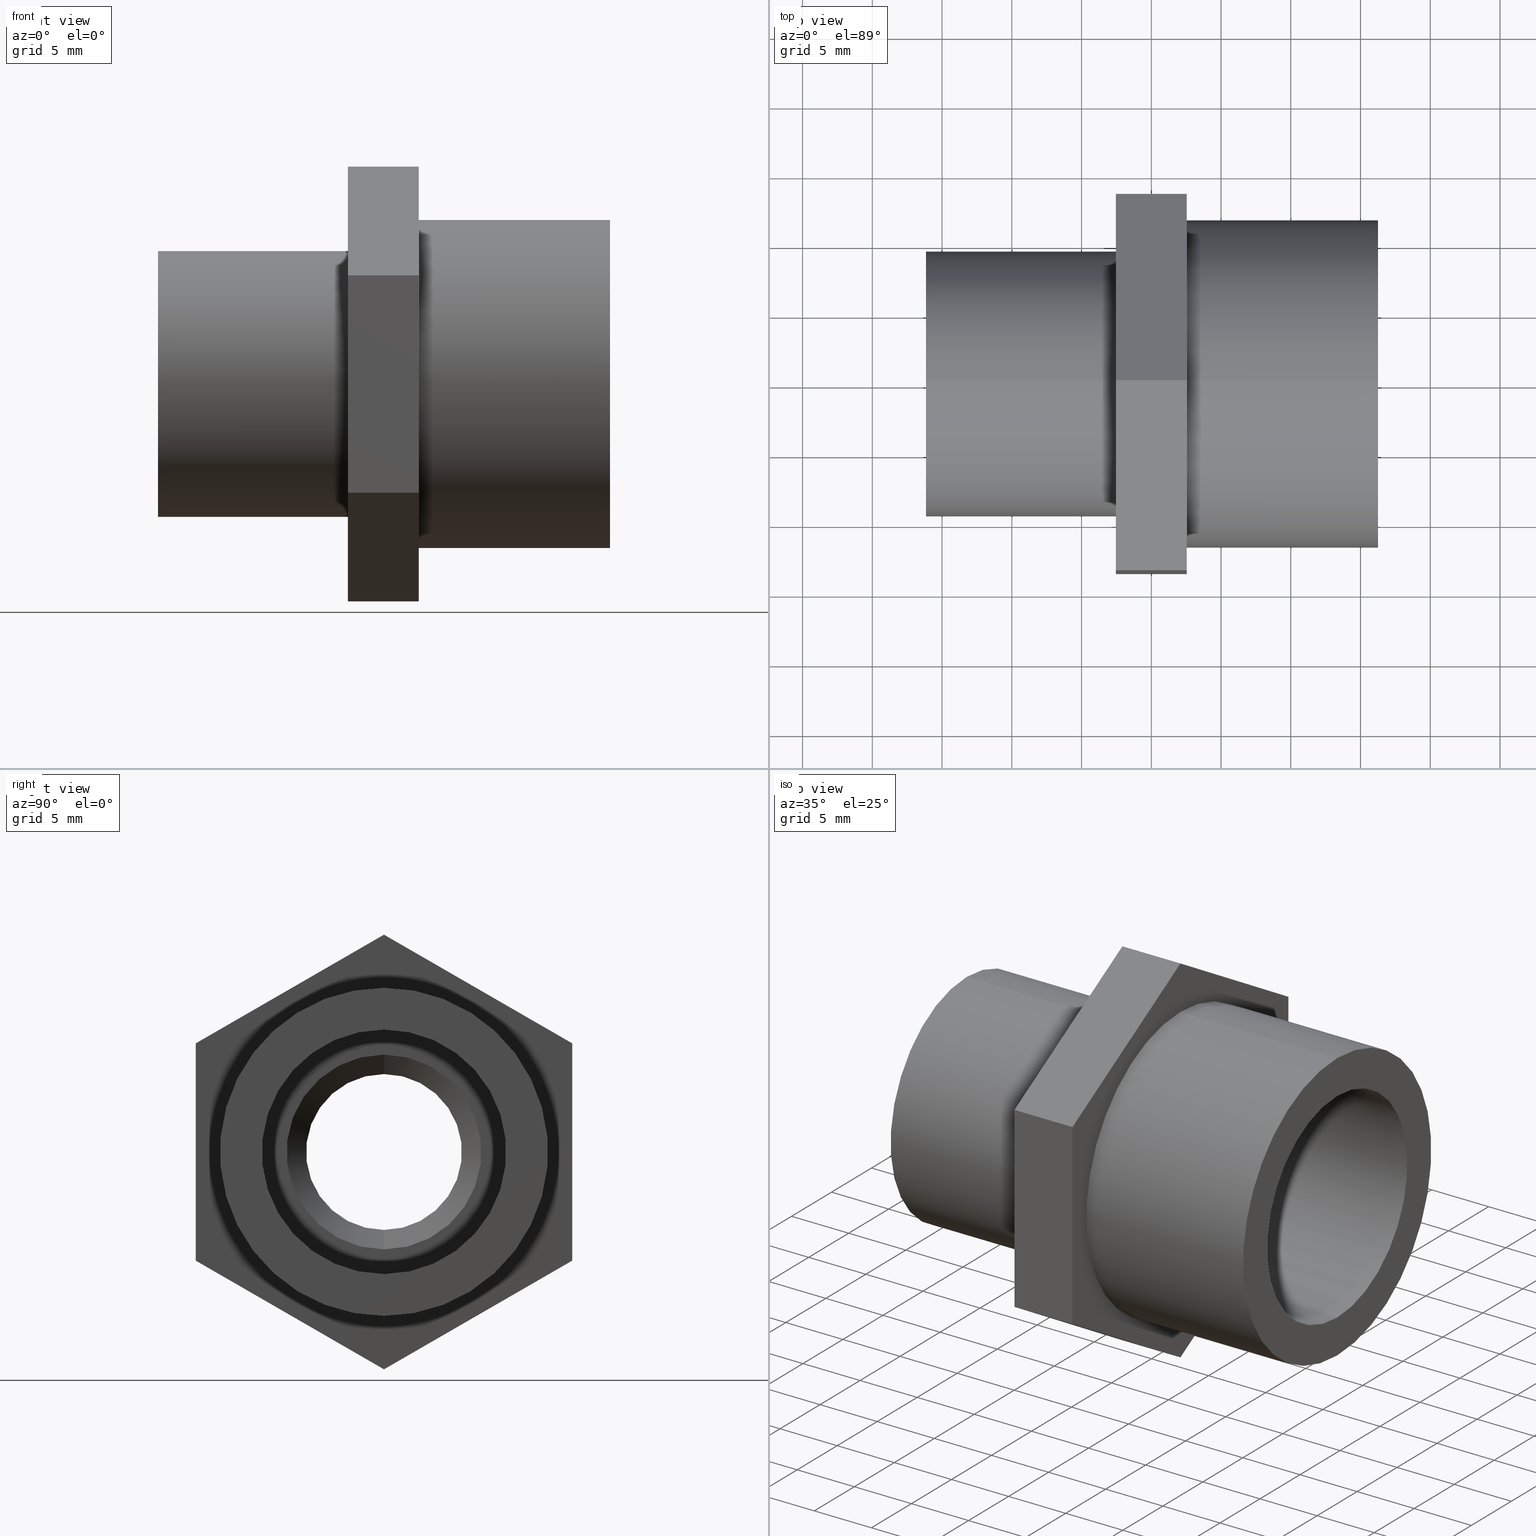
[diagram: canonical four-view strip — front | top / right | iso, engineering-drawing reading convention]
A machine part, canonical four-view strip (front | top / right | iso — engineering-drawing reading convention). The complete STEP part file that produces these views, byte-faithful:
ISO-10303-21;
HEADER;
FILE_DESCRIPTION (( 'STEP AP203' ),
    '1' );
FILE_NAME ('BFFC-12N-14N.step',
    '2016-02-15T20:04:26',
    ( '' ),
    ( '' ),
    'SwSTEP 2.0',
    'SolidWorks 2015',
    '' );
FILE_SCHEMA (( 'CONFIG_CONTROL_DESIGN' ));
ENDSEC;

DATA;
#1 = LINE ( 'NONE', #13, #64 ) ;
#2 = ORIENTED_EDGE ( 'NONE', *, *, #189, .F. ) ;
#3 = EDGE_CURVE ( 'NONE', #180, #53, #340, .T. ) ;
#4 = CARTESIAN_POINT ( 'NONE',  ( -0.1000000000000000100, 0.5312499999999997800, 0.3067173305069887400 ) ) ;
#5 = CARTESIAN_POINT ( 'NONE',  ( 0.1000000000000000100, 0.5312499999999998900, -0.3067173305069886300 ) ) ;
#6 = FACE_OUTER_BOUND ( 'NONE', #409, .T. ) ;
#7 = ORIENTED_EDGE ( 'NONE', *, *, #133, .F. ) ;
#8 = VECTOR ( 'NONE', #425, 39.37007874015748100 ) ;
#9 = DIRECTION ( 'NONE',  ( 0.0000000000000000000, 0.8660254037844388200, -0.4999999999999997200 ) ) ;
#10 = DIRECTION ( 'NONE',  ( -1.000000000000000000, 0.0000000000000000000, 0.0000000000000000000 ) ) ;
#11 = AXIS2_PLACEMENT_3D ( 'NONE', #18, #398, #78 ) ;
#12 = ORIENTED_EDGE ( 'NONE', *, *, #220, .T. ) ;
#13 = CARTESIAN_POINT ( 'NONE',  ( 0.6399999999999996800, 2.694222958124177300E-017, -0.2200000000000000000 ) ) ;
#14 = EDGE_LOOP ( 'NONE', ( #249, #169, #402, #81 ) ) ;
#15 = VECTOR ( 'NONE', #441, 39.37007874015748100 ) ;
#16 = DIRECTION ( 'NONE',  ( 0.0000000000000000000, 0.8660254037844388200, -0.4999999999999997200 ) ) ;
#17 = VERTEX_POINT ( 'NONE', #381 ) ;
#18 = CARTESIAN_POINT ( 'NONE',  ( 0.6399999999999999000, 0.0000000000000000000, 0.0000000000000000000 ) ) ;
#19 = EDGE_CURVE ( 'NONE', #516, #153, #118, .T. ) ;
#20 = ORIENTED_EDGE ( 'NONE', *, *, #552, .T. ) ;
#21 = CARTESIAN_POINT ( 'NONE',  ( -0.6360000000000000100, 0.0000000000000000000, 0.0000000000000000000 ) ) ;
#22 = VERTEX_POINT ( 'NONE', #413 ) ;
#23 = DIRECTION ( 'NONE',  ( 0.0000000000000000000, 0.0000000000000000000, -1.000000000000000000 ) ) ;
#24 = ORIENTED_EDGE ( 'NONE', *, *, #293, .T. ) ;
#25 = CARTESIAN_POINT ( 'NONE',  ( -0.1000000000000000100, -1.152752708713805400E-018, 0.6134346610139772600 ) ) ;
#26 = CARTESIAN_POINT ( 'NONE',  ( -0.1000000000000000200, 0.0000000000000000000, 0.0000000000000000000 ) ) ;
#27 = AXIS2_PLACEMENT_3D ( 'NONE', #135, #66, #9 ) ;
#28 = EDGE_LOOP ( 'NONE', ( #558, #434 ) ) ;
#29 = MECHANICAL_CONTEXT ( 'NONE', #602, 'mechanical' ) ;
#30 = DIRECTION ( 'NONE',  ( 1.000000000000000000, 0.0000000000000000000, 0.0000000000000000000 ) ) ;
#31 = EDGE_CURVE ( 'NONE', #226, #284, #173, .T. ) ;
#32 = FACE_BOUND ( 'NONE', #42, .T. ) ;
#33 = CYLINDRICAL_SURFACE ( 'NONE', #303, 0.3750000000000000600 ) ;
#34 = ORIENTED_EDGE ( 'NONE', *, *, #517, .T. ) ;
#35 = VERTEX_POINT ( 'NONE', #371 ) ;
#36 = PERSON_AND_ORGANIZATION_ROLE ( 'classification_officer' ) ;
#37 = LINE ( 'NONE', #289, #593 ) ;
#38 = UNCERTAINTY_MEASURE_WITH_UNIT (LENGTH_MEASURE( 1.000000000000000100E-005 ), #444, 'distance_accuracy_value', 'NONE');
#39 = AXIS2_PLACEMENT_3D ( 'NONE', #307, #656, #361 ) ;
#40 = DIRECTION ( 'NONE',  ( 1.000000000000000000, -0.0000000000000000000, -0.0000000000000000000 ) ) ;
#41 = CARTESIAN_POINT ( 'NONE',  ( 0.6399999999999999000, 0.0000000000000000000, 0.0000000000000000000 ) ) ;
#42 = EDGE_LOOP ( 'NONE', ( #63, #310 ) ) ;
#43 = DIRECTION ( 'NONE',  ( 0.0000000000000000000, 0.0000000000000000000, -1.000000000000000000 ) ) ;
#44 = CARTESIAN_POINT ( 'NONE',  ( 0.1000000000000000100, 1.352032947687220900E-016, -0.6134346610139772600 ) ) ;
#45 = EDGE_CURVE ( 'NONE', #180, #292, #348, .T. ) ;
#46 = ORIENTED_EDGE ( 'NONE', *, *, #436, .T. ) ;
#47 = EDGE_LOOP ( 'NONE', ( #354, #112, #195, #147 ) ) ;
#48 = DIRECTION ( 'NONE',  ( 0.0000000000000000000, 0.5000000000000001100, -0.8660254037844386000 ) ) ;
#49 = ADVANCED_FACE ( 'NONE', ( #99 ), #33, .T. ) ;
#50 = ORIENTED_EDGE ( 'NONE', *, *, #31, .T. ) ;
#51 = VECTOR ( 'NONE', #582, 39.37007874015748100 ) ;
#52 = AXIS2_PLACEMENT_3D ( 'NONE', #186, #291, #639 ) ;
#53 = VERTEX_POINT ( 'NONE', #160 ) ;
#54 = ADVANCED_FACE ( 'NONE', ( #59 ), #208, .T. ) ;
#55 = DIRECTION ( 'NONE',  ( -1.000000000000000000, 0.0000000000000000000, 0.0000000000000000000 ) ) ;
#56 = EDGE_CURVE ( 'NONE', #386, #207, #170, .T. ) ;
#57 = COORDINATED_UNIVERSAL_TIME_OFFSET ( 5, 0, .BEHIND. ) ;
#58 = VERTEX_POINT ( 'NONE', #164 ) ;
#59 = FACE_OUTER_BOUND ( 'NONE', #438, .T. ) ;
#60 = VECTOR ( 'NONE', #663, 39.37007874015748100 ) ;
#61 = ORIENTED_EDGE ( 'NONE', *, *, #45, .T. ) ;
#62 = FACE_OUTER_BOUND ( 'NONE', #437, .T. ) ;
#63 = ORIENTED_EDGE ( 'NONE', *, *, #475, .F. ) ;
#64 = VECTOR ( 'NONE', #241, 39.37007874015748100 ) ;
#65 = ORIENTED_EDGE ( 'NONE', *, *, #419, .T. ) ;
#66 = DIRECTION ( 'NONE',  ( 0.0000000000000000000, -0.4999999999999997200, -0.8660254037844388200 ) ) ;
#67 = DIRECTION ( 'NONE',  ( 0.0000000000000000000, -1.113341064372142000E-016, 1.000000000000000000 ) ) ;
#68 = AXIS2_PLACEMENT_3D ( 'NONE', #421, #125, #177 ) ;
#69 = DIRECTION ( 'NONE',  ( 0.0000000000000000000, 0.0000000000000000000, -1.000000000000000000 ) ) ;
#70 = ORIENTED_EDGE ( 'NONE', *, *, #248, .T. ) ;
#71 = FACE_OUTER_BOUND ( 'NONE', #569, .T. ) ;
#72 = ORIENTED_EDGE ( 'NONE', *, *, #283, .T. ) ;
#73 = ORIENTED_EDGE ( 'NONE', *, *, #668, .F. ) ;
#74 = EDGE_CURVE ( 'NONE', #577, #516, #188, .T. ) ;
#75 = PRODUCT_DEFINITION_SHAPE ( 'NONE', 'NONE',  #128 ) ;
#76 = CARTESIAN_POINT ( 'NONE',  ( 0.1000000000000000200, 5.670114680052246400E-017, -0.4630000000000000200 ) ) ;
#77 = CARTESIAN_POINT ( 'NONE',  ( -0.1000000000000000100, -0.5312500000000000000, 0.3067173305069887400 ) ) ;
#78 = DIRECTION ( 'NONE',  ( 0.0000000000000000000, 0.0000000000000000000, -1.000000000000000000 ) ) ;
#79 = CC_DESIGN_PERSON_AND_ORGANIZATION_ASSIGNMENT ( #615, #404, ( #454 ) ) ;
#80 = LOCAL_TIME ( 15, 4, 26.00000000000000000, #224 ) ;
#81 = ORIENTED_EDGE ( 'NONE', *, *, #3, .F. ) ;
#82 = VECTOR ( 'NONE', #538, 39.37007874015748900 ) ;
#83 = CARTESIAN_POINT ( 'NONE',  ( 0.1000000000000000200, 0.0000000000000000000, 0.0000000000000000000 ) ) ;
#84 = LINE ( 'NONE', #25, #654 ) ;
#85 = EDGE_LOOP ( 'NONE', ( #465, #472, #20, #247 ) ) ;
#86 = CIRCLE ( 'NONE', #11, 0.3449999999999999200 ) ;
#87 = VERTEX_POINT ( 'NONE', #255 ) ;
#88 = PLANE ( 'NONE',  #343 ) ;
#89 = VECTOR ( 'NONE', #541, 39.37007874015748900 ) ;
#90 = EDGE_CURVE ( 'NONE', #642, #139, #473, .T. ) ;
#91 = ORIENTED_EDGE ( 'NONE', *, *, #56, .T. ) ;
#92 = CARTESIAN_POINT ( 'NONE',  ( 0.1000000000000000100, -1.152752708713805400E-018, 0.6134346610139772600 ) ) ;
#93 = CARTESIAN_POINT ( 'NONE',  ( -0.03175426480542933900, 2.694222958124177300E-017, -0.2200000000000000000 ) ) ;
#94 = DIRECTION ( 'NONE',  ( 0.0000000000000000000, 0.0000000000000000000, -1.000000000000000000 ) ) ;
#95 = CARTESIAN_POINT ( 'NONE',  ( 0.0000000000000000000, 0.0000000000000000000, 0.0000000000000000000 ) ) ;
#96 = ORIENTED_EDGE ( 'NONE', *, *, #159, .T. ) ;
#97 = LINE ( 'NONE', #137, #669 ) ;
#98 =( LENGTH_UNIT ( ) NAMED_UNIT ( * ) SI_UNIT ( $, .METRE. ) );
#99 = FACE_OUTER_BOUND ( 'NONE', #431, .T. ) ;
#100 = EDGE_LOOP ( 'NONE', ( #91, #167, #446, #510 ) ) ;
#101 = EDGE_LOOP ( 'NONE', ( #215, #2, #129, #179 ) ) ;
#102 = APPLICATION_CONTEXT ( 'configuration controlled 3d designs of mechanical parts and assemblies' ) ;
#103 = AXIS2_PLACEMENT_3D ( 'NONE', #83, #435, #148 ) ;
#104 = APPROVAL_DATE_TIME ( #242, #326 ) ;
#105 = EDGE_CURVE ( 'NONE', #266, #243, #449, .T. ) ;
#106 = VECTOR ( 'NONE', #308, 39.37007874015748100 ) ;
#107 = LOCAL_TIME ( 15, 4, 26.00000000000000000, #638 ) ;
#108 = DATE_AND_TIME ( #651, #107 ) ;
#109 = DIRECTION ( 'NONE',  ( 0.0000000000000000000, 0.0000000000000000000, -1.000000000000000000 ) ) ;
#110 = VECTOR ( 'NONE', #278, 39.37007874015748100 ) ;
#111 = CARTESIAN_POINT ( 'NONE',  ( -0.1000000000000000200, 0.0000000000000000000, -0.3750000000000000600 ) ) ;
#112 = ORIENTED_EDGE ( 'NONE', *, *, #45, .F. ) ;
#113 = LINE ( 'NONE', #193, #229 ) ;
#114 = CYLINDRICAL_SURFACE ( 'NONE', #579, 0.3449999999999999200 ) ;
#115 = PRODUCT_RELATED_PRODUCT_CATEGORY ( 'detail', '', ( #454 ) ) ;
#116 = ORIENTED_EDGE ( 'NONE', *, *, #488, .F. ) ;
#117 = AXIS2_PLACEMENT_3D ( 'NONE', #95, #652, #599 ) ;
#118 = LINE ( 'NONE', #132, #110 ) ;
#119 = ORIENTED_EDGE ( 'NONE', *, *, #90, .F. ) ;
#120 = VERTEX_POINT ( 'NONE', #509 ) ;
#121 = CARTESIAN_POINT ( 'NONE',  ( -0.1000000000000000100, -0.5312500000000000000, -0.3067173305069886300 ) ) ;
#122 = EDGE_CURVE ( 'NONE', #577, #284, #500, .T. ) ;
#123 = ADVANCED_FACE ( 'NONE', ( #196 ), #270, .T. ) ;
#124 = APPROVAL_STATUS ( 'not_yet_approved' ) ;
#125 = DIRECTION ( 'NONE',  ( 1.000000000000000000, 0.0000000000000000000, 0.0000000000000000000 ) ) ;
#126 = APPROVAL_PERSON_ORGANIZATION ( #265, #326, #605 ) ;
#127 = ORIENTED_EDGE ( 'NONE', *, *, #583, .F. ) ;
#128 = PRODUCT_DEFINITION ( 'UNKNOWN', '', #299, #290 ) ;
#129 = ORIENTED_EDGE ( 'NONE', *, *, #56, .F. ) ;
#130 = LINE ( 'NONE', #232, #8 ) ;
#131 = DIRECTION ( 'NONE',  ( 0.0000000000000000000, 0.0000000000000000000, 1.000000000000000000 ) ) ;
#132 = CARTESIAN_POINT ( 'NONE',  ( -0.1000000000000000100, 0.5312499999999997800, 0.3067173305069887400 ) ) ;
#133 = EDGE_CURVE ( 'NONE', #292, #17, #474, .T. ) ;
#134 = DIRECTION ( 'NONE',  ( -1.000000000000000000, 0.0000000000000000000, 0.0000000000000000000 ) ) ;
#135 = CARTESIAN_POINT ( 'NONE',  ( -0.1000000000000000100, -0.5312500000000000000, -0.3067173305069886300 ) ) ;
#136 = DIRECTION ( 'NONE',  ( 0.0000000000000000000, 0.0000000000000000000, -1.000000000000000000 ) ) ;
#137 = CARTESIAN_POINT ( 'NONE',  ( -0.1000000000000000100, 0.5312499999999997800, 0.3067173305069887400 ) ) ;
#138 = ORIENTED_EDGE ( 'NONE', *, *, #395, .F. ) ;
#139 = VERTEX_POINT ( 'NONE', #617 ) ;
#140 = ORIENTED_EDGE ( 'NONE', *, *, #488, .T. ) ;
#141 = CARTESIAN_POINT ( 'NONE',  ( -0.1000000000000000100, 0.5312499999999997800, 0.3067173305069887400 ) ) ;
#142 = AXIS2_PLACEMENT_3D ( 'NONE', #584, #298, #645 ) ;
#143 = COORDINATED_UNIVERSAL_TIME_OFFSET ( 5, 0, .BEHIND. ) ;
#144 = EDGE_LOOP ( 'NONE', ( #161, #587 ) ) ;
#145 = EDGE_LOOP ( 'NONE', ( #537, #138, #328, #399 ) ) ;
#146 = EDGE_CURVE ( 'NONE', #244, #259, #590, .T. ) ;
#147 = ORIENTED_EDGE ( 'NONE', *, *, #570, .F. ) ;
#148 = DIRECTION ( 'NONE',  ( 0.0000000000000000000, 0.0000000000000000000, -1.000000000000000000 ) ) ;
#149 = DIRECTION ( 'NONE',  ( 1.000000000000000000, 0.0000000000000000000, 0.0000000000000000000 ) ) ;
#150 = CARTESIAN_POINT ( 'NONE',  ( -0.03175426480542933900, 0.0000000000000000000, 0.0000000000000000000 ) ) ;
#151 = CARTESIAN_POINT ( 'NONE',  ( -0.1000000000000000100, -1.152752708713805400E-018, 0.6134346610139772600 ) ) ;
#152 = CARTESIAN_POINT ( 'NONE',  ( 0.1000000000000000100, 0.5312499999999997800, 0.3067173305069887400 ) ) ;
#153 = VERTEX_POINT ( 'NONE', #152 ) ;
#154 = ORIENTED_EDGE ( 'NONE', *, *, #384, .T. ) ;
#155 = DIRECTION ( 'NONE',  ( 0.0000000000000000000, -0.8660254037844386000, -0.4999999999999998300 ) ) ;
#156 =( NAMED_UNIT ( * ) PLANE_ANGLE_UNIT ( ) SI_UNIT ( $, .RADIAN. ) );
#157 = APPROVAL_STATUS ( 'not_yet_approved' ) ;
#158 = CARTESIAN_POINT ( 'NONE',  ( -0.6360000000000000100, 2.694222958124177300E-017, -0.2200000000000000000 ) ) ;
#159 = EDGE_CURVE ( 'NONE', #369, #17, #603, .T. ) ;
#160 = CARTESIAN_POINT ( 'NONE',  ( 0.0000000000000000000, 0.0000000000000000000, -0.2750000000000001900 ) ) ;
#161 = ORIENTED_EDGE ( 'NONE', *, *, #316, .T. ) ;
#162 = EDGE_LOOP ( 'NONE', ( #119, #318, #662, #154 ) ) ;
#163 = APPROVAL ( #157, 'UNSPECIFIED' ) ;
#164 = CARTESIAN_POINT ( 'NONE',  ( 0.6399999999999999000, 5.670114680052246400E-017, -0.4630000000000000200 ) ) ;
#165 = EDGE_CURVE ( 'NONE', #386, #22, #564, .T. ) ;
#166 = CARTESIAN_POINT ( 'NONE',  ( -0.6360000000000000100, 4.592425496802575500E-017, 0.3750000000000000600 ) ) ;
#167 = ORIENTED_EDGE ( 'NONE', *, *, #293, .F. ) ;
#168 = ADVANCED_FACE ( 'NONE', ( #490, #550 ), #373, .T. ) ;
#169 = ORIENTED_EDGE ( 'NONE', *, *, #616, .T. ) ;
#170 = LINE ( 'NONE', #319, #60 ) ;
#171 = FACE_OUTER_BOUND ( 'NONE', #101, .T. ) ;
#172 = AXIS2_PLACEMENT_3D ( 'NONE', #640, #341, #295 ) ;
#173 = LINE ( 'NONE', #222, #82 ) ;
#174 = ORIENTED_EDGE ( 'NONE', *, *, #19, .T. ) ;
#175 = ADVANCED_FACE ( 'NONE', ( #526 ), #643, .F. ) ;
#176 = ADVANCED_BREP_SHAPE_REPRESENTATION ( 'BFFC-12N-14N', ( #443, #39 ), #532 ) ;
#177 = DIRECTION ( 'NONE',  ( 0.0000000000000000000, 0.0000000000000000000, -1.000000000000000000 ) ) ;
#178 = EDGE_CURVE ( 'NONE', #120, #650, #84, .T. ) ;
#179 = ORIENTED_EDGE ( 'NONE', *, *, #165, .T. ) ;
#180 = VERTEX_POINT ( 'NONE', #93 ) ;
#181 = DIRECTION ( 'NONE',  ( -0.0000000000000000000, 0.4999999999999999400, 0.8660254037844387100 ) ) ;
#182 = AXIS2_PLACEMENT_3D ( 'NONE', #356, #277, #131 ) ;
#183 = PLANE ( 'NONE',  #52 ) ;
#184 = ORIENTED_EDGE ( 'NONE', *, *, #122, .F. ) ;
#185 = ORIENTED_EDGE ( 'NONE', *, *, #364, .F. ) ;
#186 = CARTESIAN_POINT ( 'NONE',  ( -0.1000000000000000100, -0.5312500000000000000, 0.3067173305069887400 ) ) ;
#187 = CIRCLE ( 'NONE', #596, 0.3750000000000000600 ) ;
#188 = LINE ( 'NONE', #367, #588 ) ;
#189 = EDGE_CURVE ( 'NONE', #207, #226, #611, .T. ) ;
#190 = CARTESIAN_POINT ( 'NONE',  ( -0.6360000000000000100, 0.0000000000000000000, -0.3750000000000000600 ) ) ;
#191 = CYLINDRICAL_SURFACE ( 'NONE', #620, 0.3449999999999999200 ) ;
#192 = CC_DESIGN_APPROVAL ( #163, ( #128 ) ) ;
#193 = CARTESIAN_POINT ( 'NONE',  ( -0.03175426480542933900, 2.694222958124177300E-017, 0.2200000000000000000 ) ) ;
#194 = APPROVAL_DATE_TIME ( #327, #557 ) ;
#195 = ORIENTED_EDGE ( 'NONE', *, *, #3, .T. ) ;
#196 = FACE_OUTER_BOUND ( 'NONE', #246, .T. ) ;
#197 = AXIS2_PLACEMENT_3D ( 'NONE', #150, #544, #305 ) ;
#198 = CARTESIAN_POINT ( 'NONE',  ( -0.1000000000000000100, -7.315936591720330400E-017, 0.6134346610139772600 ) ) ;
#199 = VECTOR ( 'NONE', #598, 39.37007874015748100 ) ;
#200 = EDGE_LOOP ( 'NONE', ( #174, #116, #184, #251 ) ) ;
#201 = PERSON_AND_ORGANIZATION_ROLE ( 'creator' ) ;
#202 = AXIS2_PLACEMENT_3D ( 'NONE', #539, #252, #589 ) ;
#203 = FACE_OUTER_BOUND ( 'NONE', #548, .T. ) ;
#204 = LINE ( 'NONE', #528, #534 ) ;
#205 = EDGE_CURVE ( 'NONE', #297, #329, #665, .T. ) ;
#206 = APPROVAL_PERSON_ORGANIZATION ( #346, #557, #468 ) ;
#207 = VERTEX_POINT ( 'NONE', #614 ) ;
#208 = CYLINDRICAL_SURFACE ( 'NONE', #334, 0.3750000000000000600 ) ;
#209 = CARTESIAN_POINT ( 'NONE',  ( -0.03175426480542933900, 0.0000000000000000000, 0.0000000000000000000 ) ) ;
#210 = DIRECTION ( 'NONE',  ( 0.0000000000000000000, 0.0000000000000000000, -1.000000000000000000 ) ) ;
#211 = ORIENTED_EDGE ( 'NONE', *, *, #220, .F. ) ;
#212 = CIRCLE ( 'NONE', #445, 0.2200000000000000000 ) ;
#213 = ORIENTED_EDGE ( 'NONE', *, *, #364, .T. ) ;
#214 = AXIS2_PLACEMENT_3D ( 'NONE', #518, #55, #470 ) ;
#215 = ORIENTED_EDGE ( 'NONE', *, *, #668, .T. ) ;
#216 = FACE_OUTER_BOUND ( 'NONE', #14, .T. ) ;
#217 = ORIENTED_EDGE ( 'NONE', *, *, #540, .T. ) ;
#218 = ADVANCED_FACE ( 'NONE', ( #6 ), #659, .T. ) ;
#219 = CYLINDRICAL_SURFACE ( 'NONE', #313, 0.2200000000000000000 ) ;
#220 = EDGE_CURVE ( 'NONE', #87, #519, #462, .T. ) ;
#221 = ADVANCED_FACE ( 'NONE', ( #628 ), #601, .T. ) ;
#222 = CARTESIAN_POINT ( 'NONE',  ( 0.1000000000000000100, 1.352032947687220900E-016, -0.6134346610139772600 ) ) ;
#223 = FACE_OUTER_BOUND ( 'NONE', #397, .T. ) ;
#224 = COORDINATED_UNIVERSAL_TIME_OFFSET ( 5, 0, .BEHIND. ) ;
#225 = ORIENTED_EDGE ( 'NONE', *, *, #570, .T. ) ;
#226 = VERTEX_POINT ( 'NONE', #44 ) ;
#227 = CC_DESIGN_PERSON_AND_ORGANIZATION_ASSIGNMENT ( #280, #201, ( #128 ) ) ;
#228 = EDGE_LOOP ( 'NONE', ( #12, #482 ) ) ;
#229 = VECTOR ( 'NONE', #345, 39.37007874015748900 ) ;
#230 = VERTEX_POINT ( 'NONE', #572 ) ;
#231 = DIRECTION ( 'NONE',  ( 1.000000000000000000, 0.0000000000000000000, 0.0000000000000000000 ) ) ;
#232 = CARTESIAN_POINT ( 'NONE',  ( 0.6399999999999999000, 0.0000000000000000000, 0.4630000000000000200 ) ) ;
#233 = CARTESIAN_POINT ( 'NONE',  ( -0.03175426480542933900, 0.0000000000000000000, 0.2200000000000000000 ) ) ;
#234 = ORIENTED_EDGE ( 'NONE', *, *, #419, .F. ) ;
#235 = VECTOR ( 'NONE', #275, 39.37007874015748900 ) ;
#236 = ORIENTED_EDGE ( 'NONE', *, *, #410, .F. ) ;
#237 = ORIENTED_EDGE ( 'NONE', *, *, #604, .F. ) ;
#238 = DIRECTION ( 'NONE',  ( -1.000000000000000000, -0.0000000000000000000, -0.0000000000000000000 ) ) ;
#239 = AXIS2_PLACEMENT_3D ( 'NONE', #649, #355, #23 ) ;
#240 = DIRECTION ( 'NONE',  ( 1.000000000000000000, -0.0000000000000000000, -0.0000000000000000000 ) ) ;
#241 = DIRECTION ( 'NONE',  ( -1.000000000000000000, -0.0000000000000000000, -0.0000000000000000000 ) ) ;
#242 = DATE_AND_TIME ( #380, #504 ) ;
#243 = VERTEX_POINT ( 'NONE', #111 ) ;
#244 = VERTEX_POINT ( 'NONE', #556 ) ;
#245 = CIRCLE ( 'NONE', #288, 0.3449999999999999200 ) ;
#246 = EDGE_LOOP ( 'NONE', ( #414, #338, #73, #464 ) ) ;
#247 = ORIENTED_EDGE ( 'NONE', *, *, #452, .F. ) ;
#248 = EDGE_CURVE ( 'NONE', #243, #259, #187, .T. ) ;
#249 = ORIENTED_EDGE ( 'NONE', *, *, #436, .F. ) ;
#250 = FACE_OUTER_BOUND ( 'NONE', #461, .T. ) ;
#251 = ORIENTED_EDGE ( 'NONE', *, *, #74, .T. ) ;
#252 = DIRECTION ( 'NONE',  ( -1.000000000000000000, -0.0000000000000000000, -0.0000000000000000000 ) ) ;
#253 = DIRECTION ( 'NONE',  ( -1.000000000000000000, -0.0000000000000000000, -0.0000000000000000000 ) ) ;
#254 = ORIENTED_EDGE ( 'NONE', *, *, #637, .F. ) ;
#255 = CARTESIAN_POINT ( 'NONE',  ( 0.1000000000000000200, 0.0000000000000000000, 0.4630000000000000200 ) ) ;
#256 = CARTESIAN_POINT ( 'NONE',  ( -0.1000000000000000100, 1.352032947687220900E-016, -0.6134346610139772600 ) ) ;
#257 = ORIENTED_EDGE ( 'NONE', *, *, #660, .T. ) ;
#258 = AXIS2_PLACEMENT_3D ( 'NONE', #417, #30, #260 ) ;
#259 = VERTEX_POINT ( 'NONE', #427 ) ;
#260 = DIRECTION ( 'NONE',  ( 0.0000000000000000000, 0.0000000000000000000, -1.000000000000000000 ) ) ;
#261 = APPROVAL_STATUS ( 'not_yet_approved' ) ;
#262 = EDGE_CURVE ( 'NONE', #516, #120, #97, .T. ) ;
#263 = DIRECTION ( 'NONE',  ( 0.0000000000000000000, -1.113341064372142200E-016, 1.000000000000000000 ) ) ;
#264 = DIRECTION ( 'NONE',  ( -1.000000000000000000, -0.0000000000000000000, -0.0000000000000000000 ) ) ;
#265 = PERSON_AND_ORGANIZATION ( #407, #336 ) ;
#266 = VERTEX_POINT ( 'NONE', #337 ) ;
#267 = ORIENTED_EDGE ( 'NONE', *, *, #660, .F. ) ;
#268 = CC_DESIGN_DATE_AND_TIME_ASSIGNMENT ( #396, #549, ( #128 ) ) ;
#269 = CARTESIAN_POINT ( 'NONE',  ( 0.1000000000000000200, 0.0000000000000000000, 0.0000000000000000000 ) ) ;
#270 = PLANE ( 'NONE',  #372 ) ;
#271 = AXIS2_PLACEMENT_3D ( 'NONE', #507, #533, #531 ) ;
#272 = CARTESIAN_POINT ( 'NONE',  ( -0.1000000000000000100, -0.5312500000000000000, -0.3067173305069886300 ) ) ;
#273 = ORIENTED_EDGE ( 'NONE', *, *, #133, .T. ) ;
#274 = ORIENTED_EDGE ( 'NONE', *, *, #205, .T. ) ;
#275 = DIRECTION ( 'NONE',  ( 0.0000000000000000000, -0.8660254037844386000, -0.4999999999999998300 ) ) ;
#276 = ADVANCED_FACE ( 'NONE', ( #171 ), #574, .T. ) ;
#277 = DIRECTION ( 'NONE',  ( -1.000000000000000000, 0.0000000000000000000, 0.0000000000000000000 ) ) ;
#278 = DIRECTION ( 'NONE',  ( 1.000000000000000000, 0.0000000000000000000, 0.0000000000000000000 ) ) ;
#279 = ADVANCED_FACE ( 'NONE', ( #644, #432 ), #314, .T. ) ;
#280 = PERSON_AND_ORGANIZATION ( #407, #336 ) ;
#281 = ORIENTED_EDGE ( 'NONE', *, *, #325, .T. ) ;
#282 = LINE ( 'NONE', #429, #385 ) ;
#283 = EDGE_CURVE ( 'NONE', #120, #297, #565, .T. ) ;
#284 = VERTEX_POINT ( 'NONE', #5 ) ;
#285 = PLANE ( 'NONE',  #415 ) ;
#286 = DIRECTION ( 'NONE',  ( 0.0000000000000000000, -0.8660254037844386000, 0.4999999999999998900 ) ) ;
#287 = DIRECTION ( 'NONE',  ( 1.000000000000000000, 0.0000000000000000000, 0.0000000000000000000 ) ) ;
#288 = AXIS2_PLACEMENT_3D ( 'NONE', #521, #231, #571 ) ;
#289 = CARTESIAN_POINT ( 'NONE',  ( 0.1000000000000000100, 0.5312499999999998900, -0.3067173305069886300 ) ) ;
#290 = DESIGN_CONTEXT ( 'detailed design', #102, 'design' ) ;
#291 = DIRECTION ( 'NONE',  ( 0.0000000000000000000, -1.000000000000000000, 0.0000000000000000000 ) ) ;
#292 = VERTEX_POINT ( 'NONE', #233 ) ;
#293 = EDGE_CURVE ( 'NONE', #329, #207, #374, .T. ) ;
#294 = DIRECTION ( 'NONE',  ( -1.000000000000000000, -0.0000000000000000000, -0.0000000000000000000 ) ) ;
#295 = DIRECTION ( 'NONE',  ( 0.0000000000000000000, 0.0000000000000000000, 1.000000000000000000 ) ) ;
#296 = FACE_OUTER_BOUND ( 'NONE', #85, .T. ) ;
#297 = VERTEX_POINT ( 'NONE', #304 ) ;
#298 = DIRECTION ( 'NONE',  ( -1.000000000000000000, -0.0000000000000000000, -0.0000000000000000000 ) ) ;
#299 = PRODUCT_DEFINITION_FORMATION_WITH_SPECIFIED_SOURCE ( 'ANY', '', #454, .NOT_KNOWN. ) ;
#300 = DIRECTION ( 'NONE',  ( -1.000000000000000000, -0.0000000000000000000, -0.0000000000000000000 ) ) ;
#301 = ORIENTED_EDGE ( 'NONE', *, *, #624, .F. ) ;
#302 = CARTESIAN_POINT ( 'NONE',  ( -0.1000000000000000100, 1.352032947687220900E-016, -0.6134346610139772600 ) ) ;
#303 = AXIS2_PLACEMENT_3D ( 'NONE', #21, #607, #109 ) ;
#304 = CARTESIAN_POINT ( 'NONE',  ( -0.1000000000000000100, -0.5312500000000000000, 0.3067173305069887400 ) ) ;
#305 = DIRECTION ( 'NONE',  ( 0.0000000000000000000, 0.0000000000000000000, -1.000000000000000000 ) ) ;
#306 = DIRECTION ( 'NONE',  ( 0.0000000000000000000, 0.8660254037844388200, -0.4999999999999997200 ) ) ;
#307 = CARTESIAN_POINT ( 'NONE',  ( 0.0000000000000000000, 0.0000000000000000000, 0.0000000000000000000 ) ) ;
#308 = DIRECTION ( 'NONE',  ( 0.0000000000000000000, 0.0000000000000000000, -1.000000000000000000 ) ) ;
#309 = ORIENTED_EDGE ( 'NONE', *, *, #475, .T. ) ;
#310 = ORIENTED_EDGE ( 'NONE', *, *, #159, .F. ) ;
#311 = VECTOR ( 'NONE', #358, 39.37007874015748900 ) ;
#312 = PERSON_AND_ORGANIZATION_ROLE ( 'creator' ) ;
#313 = AXIS2_PLACEMENT_3D ( 'NONE', #491, #300, #646 ) ;
#314 = PLANE ( 'NONE',  #117 ) ;
#315 = CARTESIAN_POINT ( 'NONE',  ( 0.6399999999999996800, 0.0000000000000000000, 0.2200000000000000000 ) ) ;
#316 = EDGE_CURVE ( 'NONE', #423, #58, #323, .T. ) ;
#317 = CARTESIAN_POINT ( 'NONE',  ( 0.6399999999999999000, 0.0000000000000000000, 0.0000000000000000000 ) ) ;
#318 = ORIENTED_EDGE ( 'NONE', *, *, #508, .T. ) ;
#319 = CARTESIAN_POINT ( 'NONE',  ( -0.1000000000000000100, -0.5312500000000000000, -0.3067173305069886300 ) ) ;
#320 = FACE_OUTER_BOUND ( 'NONE', #648, .T. ) ;
#321 = AXIS2_PLACEMENT_3D ( 'NONE', #426, #134, #480 ) ;
#322 = ORIENTED_EDGE ( 'NONE', *, *, #647, .T. ) ;
#323 = CIRCLE ( 'NONE', #68, 0.4630000000000000200 ) ;
#324 = ADVANCED_FACE ( 'NONE', ( #32, #71 ), #469, .T. ) ;
#325 = EDGE_CURVE ( 'NONE', #650, #329, #498, .T. ) ;
#326 = APPROVAL ( #261, 'UNSPECIFIED' ) ;
#327 = DATE_AND_TIME ( #455, #586 ) ;
#328 = ORIENTED_EDGE ( 'NONE', *, *, #19, .F. ) ;
#329 = VERTEX_POINT ( 'NONE', #576 ) ;
#330 = CARTESIAN_POINT ( 'NONE',  ( -0.03175426480542933900, 0.0000000000000000000, -0.2200000000000000000 ) ) ;
#331 = VECTOR ( 'NONE', #422, 39.37007874015748900 ) ;
#332 = ORIENTED_EDGE ( 'NONE', *, *, #262, .F. ) ;
#333 = FACE_OUTER_BOUND ( 'NONE', #100, .T. ) ;
#334 = AXIS2_PLACEMENT_3D ( 'NONE', #511, #40, #495 ) ;
#335 = CARTESIAN_POINT ( 'NONE',  ( -0.1000000000000000100, 0.5312499999999998900, -0.3067173305069886300 ) ) ;
#336 = ORGANIZATION ( 'UNSPECIFIED', 'UNSPECIFIED', '' ) ;
#337 = CARTESIAN_POINT ( 'NONE',  ( -0.6360000000000000100, 0.0000000000000000000, -0.3750000000000000600 ) ) ;
#338 = ORIENTED_EDGE ( 'NONE', *, *, #31, .F. ) ;
#339 = CARTESIAN_POINT ( 'NONE',  ( -0.6360000000000000100, 0.0000000000000000000, 0.0000000000000000000 ) ) ;
#340 = LINE ( 'NONE', #330, #331 ) ;
#341 = DIRECTION ( 'NONE',  ( -1.000000000000000000, -0.0000000000000000000, -0.0000000000000000000 ) ) ;
#342 = CIRCLE ( 'NONE', #378, 0.2750000000000001900 ) ;
#343 = AXIS2_PLACEMENT_3D ( 'NONE', #351, #149, #494 ) ;
#344 = DIRECTION ( 'NONE',  ( 0.0000000000000000000, 0.0000000000000000000, -1.000000000000000000 ) ) ;
#345 = DIRECTION ( 'NONE',  ( 0.4999999999999977200, 1.060575238724908300E-016, 0.8660254037844399300 ) ) ;
#346 = PERSON_AND_ORGANIZATION ( #407, #336 ) ;
#347 = EDGE_LOOP ( 'NONE', ( #237, #350 ) ) ;
#348 = CIRCLE ( 'NONE', #197, 0.2200000000000000000 ) ;
#349 = EDGE_CURVE ( 'NONE', #297, #386, #368, .T. ) ;
#350 = ORIENTED_EDGE ( 'NONE', *, *, #508, .F. ) ;
#351 = CARTESIAN_POINT ( 'NONE',  ( 0.1000000000000000100, -7.315936591720330400E-017, 0.6134346610139772600 ) ) ;
#352 = CIRCLE ( 'NONE', #103, 0.4630000000000000200 ) ;
#353 = APPROVAL_DATE_TIME ( #108, #163 ) ;
#354 = ORIENTED_EDGE ( 'NONE', *, *, #616, .F. ) ;
#355 = DIRECTION ( 'NONE',  ( 1.000000000000000000, 0.0000000000000000000, 0.0000000000000000000 ) ) ;
#356 = CARTESIAN_POINT ( 'NONE',  ( -0.6360000000000000100, 0.0000000000000000000, 0.0000000000000000000 ) ) ;
#357 = DIRECTION ( 'NONE',  ( 1.000000000000000000, 0.0000000000000000000, 0.0000000000000000000 ) ) ;
#358 = DIRECTION ( 'NONE',  ( 0.0000000000000000000, -0.8660254037844386000, -0.4999999999999998300 ) ) ;
#359 = ORIENTED_EDGE ( 'NONE', *, *, #410, .T. ) ;
#360 = DIRECTION ( 'NONE',  ( 0.0000000000000000000, 0.0000000000000000000, -1.000000000000000000 ) ) ;
#361 = DIRECTION ( 'NONE',  ( 1.000000000000000000, 0.0000000000000000000, 0.0000000000000000000 ) ) ;
#362 = CIRCLE ( 'NONE', #406, 0.3750000000000000600 ) ;
#363 = SECURITY_CLASSIFICATION_LEVEL ( 'unclassified' ) ;
#364 = EDGE_CURVE ( 'NONE', #244, #266, #578, .T. ) ;
#365 = PERSON_AND_ORGANIZATION ( #407, #336 ) ;
#366 = ORIENTED_EDGE ( 'NONE', *, *, #248, .F. ) ;
#367 = CARTESIAN_POINT ( 'NONE',  ( -0.1000000000000000100, 0.5312499999999998900, -0.3067173305069886300 ) ) ;
#368 = LINE ( 'NONE', #562, #106 ) ;
#369 = VERTEX_POINT ( 'NONE', #158 ) ;
#370 = CC_DESIGN_APPROVAL ( #326, ( #299 ) ) ;
#371 = CARTESIAN_POINT ( 'NONE',  ( 0.0000000000000000000, 3.367778697655223700E-017, 0.2750000000000001900 ) ) ;
#372 = AXIS2_PLACEMENT_3D ( 'NONE', #653, #48, #560 ) ;
#373 = PLANE ( 'NONE',  #459 ) ;
#374 = LINE ( 'NONE', #499, #391 ) ;
#375 = ORIENTED_EDGE ( 'NONE', *, *, #105, .T. ) ;
#376 = APPROVAL_PERSON_ORGANIZATION ( #664, #163, #502 ) ;
#377 = ADVANCED_FACE ( 'NONE', ( #216 ), #382, .F. ) ;
#378 = AXIS2_PLACEMENT_3D ( 'NONE', #542, #253, #595 ) ;
#379 = DIMENSIONAL_EXPONENTS ( 1.000000000000000000, 0.0000000000000000000, 0.0000000000000000000, 0.0000000000000000000, 0.0000000000000000000, 0.0000000000000000000, 0.0000000000000000000 ) ;
#380 = CALENDAR_DATE ( 2016, 15, 2 ) ;
#381 = CARTESIAN_POINT ( 'NONE',  ( -0.6360000000000000100, 0.0000000000000000000, 0.2200000000000000000 ) ) ;
#382 = CONICAL_SURFACE ( 'NONE', #258, 0.2200000000000000000, 1.047197551196600300 ) ;
#383 = ORIENTED_EDGE ( 'NONE', *, *, #325, .F. ) ;
#384 = EDGE_CURVE ( 'NONE', #230, #139, #245, .T. ) ;
#385 = VECTOR ( 'NONE', #527, 39.37007874015748100 ) ;
#386 = VERTEX_POINT ( 'NONE', #121 ) ;
#387 = DIRECTION ( 'NONE',  ( -1.000000000000000000, -0.0000000000000000000, -0.0000000000000000000 ) ) ;
#388 = DIRECTION ( 'NONE',  ( -0.0000000000000000000, 1.000000000000000000, 1.113341064372142000E-016 ) ) ;
#389 = ORIENTED_EDGE ( 'NONE', *, *, #316, .F. ) ;
#390 = CARTESIAN_POINT ( 'NONE',  ( -0.1000000000000000200, 0.0000000000000000000, 0.0000000000000000000 ) ) ;
#391 = VECTOR ( 'NONE', #450, 39.37007874015748100 ) ;
#392 = DIRECTION ( 'NONE',  ( 1.000000000000000000, -0.0000000000000000000, -0.0000000000000000000 ) ) ;
#393 = FACE_OUTER_BOUND ( 'NONE', #162, .T. ) ;
#394 = DIRECTION ( 'NONE',  ( 0.0000000000000000000, 0.0000000000000000000, 1.000000000000000000 ) ) ;
#395 = EDGE_CURVE ( 'NONE', #153, #650, #484, .T. ) ;
#396 = DATE_AND_TIME ( #515, #658 ) ;
#397 = EDGE_LOOP ( 'NONE', ( #563, #61, #273, #309 ) ) ;
#398 = DIRECTION ( 'NONE',  ( 1.000000000000000000, 0.0000000000000000000, 0.0000000000000000000 ) ) ;
#399 = ORIENTED_EDGE ( 'NONE', *, *, #262, .T. ) ;
#400 = CC_DESIGN_PERSON_AND_ORGANIZATION_ASSIGNMENT ( #625, #312, ( #299 ) ) ;
#401 = CARTESIAN_POINT ( 'NONE',  ( 0.6399999999999999000, 0.0000000000000000000, 0.0000000000000000000 ) ) ;
#402 = ORIENTED_EDGE ( 'NONE', *, *, #647, .F. ) ;
#403 = DIRECTION ( 'NONE',  ( -1.000000000000000000, -0.0000000000000000000, -0.0000000000000000000 ) ) ;
#404 = PERSON_AND_ORGANIZATION_ROLE ( 'design_owner' ) ;
#405 = DATE_TIME_ROLE ( 'classification_date' ) ;
#406 = AXIS2_PLACEMENT_3D ( 'NONE', #26, #403, #94 ) ;
#407 = PERSON ( 'UNSPECIFIED', 'UNSPECIFIED', 'UNSPECIFIED', ('UNSPECIFIED'), ('UNSPECIFIED'), ('UNSPECIFIED') ) ;
#408 = CARTESIAN_POINT ( 'NONE',  ( 0.1000000000000000100, -0.5312500000000000000, -0.3067173305069886300 ) ) ;
#409 = EDGE_LOOP ( 'NONE', ( #301, #34, #211, #234 ) ) ;
#410 = EDGE_CURVE ( 'NONE', #266, #244, #627, .T. ) ;
#411 = DIRECTION ( 'NONE',  ( 0.0000000000000000000, 0.0000000000000000000, -1.000000000000000000 ) ) ;
#412 = DIRECTION ( 'NONE',  ( -1.000000000000000000, -0.0000000000000000000, -0.0000000000000000000 ) ) ;
#413 = CARTESIAN_POINT ( 'NONE',  ( -0.1000000000000000100, 1.352032947687220900E-016, -0.6134346610139772600 ) ) ;
#414 = ORIENTED_EDGE ( 'NONE', *, *, #122, .T. ) ;
#415 = AXIS2_PLACEMENT_3D ( 'NONE', #4, #181, #522 ) ;
#416 = ADVANCED_FACE ( 'NONE', ( #505 ), #285, .T. ) ;
#417 = CARTESIAN_POINT ( 'NONE',  ( -0.03175426480542933900, 0.0000000000000000000, 0.0000000000000000000 ) ) ;
#418 = ORIENTED_EDGE ( 'NONE', *, *, #189, .T. ) ;
#419 = EDGE_CURVE ( 'NONE', #423, #87, #130, .T. ) ;
#420 = ADVANCED_FACE ( 'NONE', ( #619 ), #632, .T. ) ;
#421 = CARTESIAN_POINT ( 'NONE',  ( 0.6399999999999999000, 0.0000000000000000000, 0.0000000000000000000 ) ) ;
#422 = DIRECTION ( 'NONE',  ( 0.4999999999999977200, 0.0000000000000000000, -0.8660254037844399300 ) ) ;
#423 = VERTEX_POINT ( 'NONE', #573 ) ;
#424 = CC_DESIGN_PERSON_AND_ORGANIZATION_ASSIGNMENT ( #489, #657, ( #299 ) ) ;
#425 = DIRECTION ( 'NONE',  ( -1.000000000000000000, -0.0000000000000000000, -0.0000000000000000000 ) ) ;
#426 = CARTESIAN_POINT ( 'NONE',  ( -0.6360000000000000100, 0.0000000000000000000, 0.0000000000000000000 ) ) ;
#427 = CARTESIAN_POINT ( 'NONE',  ( -0.1000000000000000200, 4.592425496802575500E-017, 0.3750000000000000600 ) ) ;
#428 = AXIS2_PLACEMENT_3D ( 'NONE', #209, #555, #43 ) ;
#429 = CARTESIAN_POINT ( 'NONE',  ( -0.9758073580374354600, 0.0000000000000000000, -0.3449999999999999200 ) ) ;
#430 = CARTESIAN_POINT ( 'NONE',  ( -0.9758073580374354600, 0.0000000000000000000, 0.0000000000000000000 ) ) ;
#431 = EDGE_LOOP ( 'NONE', ( #610, #236, #375, #70 ) ) ;
#432 = FACE_OUTER_BOUND ( 'NONE', #347, .T. ) ;
#433 = DIRECTION ( 'NONE',  ( -1.000000000000000000, -0.0000000000000000000, -0.0000000000000000000 ) ) ;
#434 = ORIENTED_EDGE ( 'NONE', *, *, #552, .F. ) ;
#435 = DIRECTION ( 'NONE',  ( -1.000000000000000000, -0.0000000000000000000, -0.0000000000000000000 ) ) ;
#436 = EDGE_CURVE ( 'NONE', #292, #180, #212, .T. ) ;
#437 = EDGE_LOOP ( 'NONE', ( #46, #217, #96, #7 ) ) ;
#438 = EDGE_LOOP ( 'NONE', ( #185, #439, #257, #512 ) ) ;
#439 = ORIENTED_EDGE ( 'NONE', *, *, #146, .T. ) ;
#440 = PLANE ( 'NONE',  #503 ) ;
#441 = DIRECTION ( 'NONE',  ( 1.000000000000000000, 0.0000000000000000000, 0.0000000000000000000 ) ) ;
#442 = DIRECTION ( 'NONE',  ( 0.0000000000000000000, -0.4999999999999998900, 0.8660254037844387100 ) ) ;
#443 = MANIFOLD_SOLID_BREP ( 'Chamfer2', #612 ) ;
#444 =( CONVERSION_BASED_UNIT ( 'INCH', #536 ) LENGTH_UNIT ( ) NAMED_UNIT ( #379 ) );
#445 = AXIS2_PLACEMENT_3D ( 'NONE', #575, #287, #635 ) ;
#446 = ORIENTED_EDGE ( 'NONE', *, *, #205, .F. ) ;
#447 = VECTOR ( 'NONE', #631, 39.37007874015748900 ) ;
#448 = APPLICATION_PROTOCOL_DEFINITION ( 'international standard', 'config_control_design', 1994, #102 ) ;
#449 = LINE ( 'NONE', #190, #51 ) ;
#450 = DIRECTION ( 'NONE',  ( 0.0000000000000000000, 0.0000000000000000000, -1.000000000000000000 ) ) ;
#451 = CIRCLE ( 'NONE', #547, 0.3449999999999999200 ) ;
#452 = EDGE_CURVE ( 'NONE', #523, #230, #282, .T. ) ;
#453 = DIRECTION ( 'NONE',  ( 1.000000000000000000, -0.0000000000000000000, -0.0000000000000000000 ) ) ;
#454 = PRODUCT ( 'BFFC-12N-14N', 'BFFC-12N-14N', '', ( #29 ) ) ;
#455 = CALENDAR_DATE ( 2016, 15, 2 ) ;
#456 = ORIENTED_EDGE ( 'NONE', *, *, #283, .F. ) ;
#457 = SECURITY_CLASSIFICATION ( '', '', #363 ) ;
#458 = ORIENTED_EDGE ( 'NONE', *, *, #517, .F. ) ;
#459 = AXIS2_PLACEMENT_3D ( 'NONE', #401, #559, #411 ) ;
#460 = SHAPE_DEFINITION_REPRESENTATION ( #75, #176 ) ;
#461 = EDGE_LOOP ( 'NONE', ( #634, #281, #24, #418, #50, #140 ) ) ;
#462 = CIRCLE ( 'NONE', #525, 0.4630000000000000200 ) ;
#463 = ADVANCED_FACE ( 'NONE', ( #393 ), #114, .F. ) ;
#464 = ORIENTED_EDGE ( 'NONE', *, *, #637, .T. ) ;
#465 = ORIENTED_EDGE ( 'NONE', *, *, #604, .T. ) ;
#466 = FACE_BOUND ( 'NONE', #618, .T. ) ;
#467 = ADVANCED_FACE ( 'NONE', ( #296 ), #191, .F. ) ;
#468 = APPROVAL_ROLE ( '' ) ;
#469 = PLANE ( 'NONE',  #214 ) ;
#470 = DIRECTION ( 'NONE',  ( 0.0000000000000000000, 0.0000000000000000000, 1.000000000000000000 ) ) ;
#471 = DATE_AND_TIME ( #609, #80 ) ;
#472 = ORIENTED_EDGE ( 'NONE', *, *, #90, .T. ) ;
#473 = LINE ( 'NONE', #606, #580 ) ;
#474 = LINE ( 'NONE', #315, #613 ) ;
#475 = EDGE_CURVE ( 'NONE', #17, #369, #661, .T. ) ;
#476 = ORIENTED_EDGE ( 'NONE', *, *, #74, .F. ) ;
#477 = CIRCLE ( 'NONE', #202, 0.3449999999999999200 ) ;
#478 = CARTESIAN_POINT ( 'NONE',  ( 0.1000000000000000100, 0.5312499999999997800, 0.3067173305069887400 ) ) ;
#479 = LINE ( 'NONE', #302, #89 ) ;
#480 = DIRECTION ( 'NONE',  ( 0.0000000000000000000, 0.0000000000000000000, 1.000000000000000000 ) ) ;
#481 = CARTESIAN_POINT ( 'NONE',  ( -0.9758073580374354600, 0.0000000000000000000, 0.0000000000000000000 ) ) ;
#482 = ORIENTED_EDGE ( 'NONE', *, *, #583, .T. ) ;
#483 = DIRECTION ( 'NONE',  ( 1.000000000000000000, -0.0000000000000000000, -0.0000000000000000000 ) ) ;
#484 = LINE ( 'NONE', #478, #447 ) ;
#485 = AXIS2_PLACEMENT_3D ( 'NONE', #335, #388, #67 ) ;
#486 = FACE_BOUND ( 'NONE', #228, .T. ) ;
#487 = CARTESIAN_POINT ( 'NONE',  ( 0.0000000000000000000, 0.0000000000000000000, -0.3449999999999999200 ) ) ;
#488 = EDGE_CURVE ( 'NONE', #284, #153, #37, .T. ) ;
#489 = PERSON_AND_ORGANIZATION ( #407, #336 ) ;
#490 = FACE_BOUND ( 'NONE', #28, .T. ) ;
#491 = CARTESIAN_POINT ( 'NONE',  ( 0.6399999999999996800, 0.0000000000000000000, 0.0000000000000000000 ) ) ;
#492 = CIRCLE ( 'NONE', #142, 0.2750000000000001900 ) ;
#493 = CC_DESIGN_PERSON_AND_ORGANIZATION_ASSIGNMENT ( #365, #36, ( #457 ) ) ;
#494 = DIRECTION ( 'NONE',  ( 0.0000000000000000000, 0.0000000000000000000, -1.000000000000000000 ) ) ;
#495 = DIRECTION ( 'NONE',  ( 0.0000000000000000000, 0.0000000000000000000, -1.000000000000000000 ) ) ;
#496 = CARTESIAN_POINT ( 'NONE',  ( -0.1000000000000000100, 0.5312499999999998900, -0.3067173305069886300 ) ) ;
#497 = EDGE_LOOP ( 'NONE', ( #322, #225 ) ) ;
#498 = LINE ( 'NONE', #666, #235 ) ;
#499 = CARTESIAN_POINT ( 'NONE',  ( 0.1000000000000000100, -0.5312500000000000000, 0.3067173305069887400 ) ) ;
#500 = LINE ( 'NONE', #496, #506 ) ;
#501 =( NAMED_UNIT ( * ) SI_UNIT ( $, .STERADIAN. ) SOLID_ANGLE_UNIT ( ) );
#502 = APPROVAL_ROLE ( '' ) ;
#503 = AXIS2_PLACEMENT_3D ( 'NONE', #151, #442, #155 ) ;
#504 = LOCAL_TIME ( 15, 4, 26.00000000000000000, #641 ) ;
#505 = FACE_OUTER_BOUND ( 'NONE', #145, .T. ) ;
#506 = VECTOR ( 'NONE', #585, 39.37007874015748100 ) ;
#507 = CARTESIAN_POINT ( 'NONE',  ( -0.6360000000000000100, 0.0000000000000000000, 0.0000000000000000000 ) ) ;
#508 = EDGE_CURVE ( 'NONE', #642, #523, #451, .T. ) ;
#509 = CARTESIAN_POINT ( 'NONE',  ( -0.1000000000000000100, -1.152752708713805400E-018, 0.6134346610139772600 ) ) ;
#510 = ORIENTED_EDGE ( 'NONE', *, *, #349, .T. ) ;
#511 = CARTESIAN_POINT ( 'NONE',  ( -0.6360000000000000100, 0.0000000000000000000, 0.0000000000000000000 ) ) ;
#512 = ORIENTED_EDGE ( 'NONE', *, *, #105, .F. ) ;
#513 = AXIS2_PLACEMENT_3D ( 'NONE', #339, #10, #394 ) ;
#514 = ADVANCED_FACE ( 'NONE', ( #333 ), #183, .T. ) ;
#515 = CALENDAR_DATE ( 2016, 15, 2 ) ;
#516 = VERTEX_POINT ( 'NONE', #141 ) ;
#517 = EDGE_CURVE ( 'NONE', #58, #519, #204, .T. ) ;
#518 = CARTESIAN_POINT ( 'NONE',  ( -0.6360000000000000100, 0.0000000000000000000, 0.0000000000000000000 ) ) ;
#519 = VERTEX_POINT ( 'NONE', #76 ) ;
#520 = CC_DESIGN_DATE_AND_TIME_ASSIGNMENT ( #471, #405, ( #457 ) ) ;
#521 = CARTESIAN_POINT ( 'NONE',  ( 0.6399999999999999000, 0.0000000000000000000, 0.0000000000000000000 ) ) ;
#522 = DIRECTION ( 'NONE',  ( 0.0000000000000000000, -0.8660254037844386000, 0.4999999999999998900 ) ) ;
#523 = VERTEX_POINT ( 'NONE', #487 ) ;
#524 = VECTOR ( 'NONE', #306, 39.37007874015748900 ) ;
#525 = AXIS2_PLACEMENT_3D ( 'NONE', #269, #264, #210 ) ;
#526 = FACE_OUTER_BOUND ( 'NONE', #47, .T. ) ;
#527 = DIRECTION ( 'NONE',  ( 1.000000000000000000, -0.0000000000000000000, -0.0000000000000000000 ) ) ;
#528 = CARTESIAN_POINT ( 'NONE',  ( 0.6399999999999999000, 5.670114680052246400E-017, -0.4630000000000000200 ) ) ;
#529 = LINE ( 'NONE', #256, #199 ) ;
#530 = CARTESIAN_POINT ( 'NONE',  ( 0.0000000000000000000, 0.0000000000000000000, 0.0000000000000000000 ) ) ;
#531 = DIRECTION ( 'NONE',  ( 0.0000000000000000000, 0.0000000000000000000, 1.000000000000000000 ) ) ;
#532 =( GEOMETRIC_REPRESENTATION_CONTEXT ( 3 ) GLOBAL_UNCERTAINTY_ASSIGNED_CONTEXT ( ( #38 ) ) GLOBAL_UNIT_ASSIGNED_CONTEXT ( ( #444, #156, #501 ) ) REPRESENTATION_CONTEXT ( 'NONE', 'WORKASPACE' ) );
#533 = DIRECTION ( 'NONE',  ( -1.000000000000000000, 0.0000000000000000000, 0.0000000000000000000 ) ) ;
#534 = VECTOR ( 'NONE', #433, 39.37007874015748100 ) ;
#535 = CARTESIAN_POINT ( 'NONE',  ( -0.1000000000000000100, 0.5312499999999998900, -0.3067173305069886300 ) ) ;
#536 = LENGTH_MEASURE_WITH_UNIT ( LENGTH_MEASURE( 0.02539999999999999900 ), #98 );
#537 = ORIENTED_EDGE ( 'NONE', *, *, #178, .T. ) ;
#538 = DIRECTION ( 'NONE',  ( 0.0000000000000000000, 0.8660254037844386000, 0.5000000000000000000 ) ) ;
#539 = CARTESIAN_POINT ( 'NONE',  ( 0.0000000000000000000, 0.0000000000000000000, 0.0000000000000000000 ) ) ;
#540 = EDGE_CURVE ( 'NONE', #180, #369, #1, .T. ) ;
#541 = DIRECTION ( 'NONE',  ( 0.0000000000000000000, 0.8660254037844386000, 0.5000000000000000000 ) ) ;
#542 = CARTESIAN_POINT ( 'NONE',  ( 0.0000000000000000000, 0.0000000000000000000, 0.0000000000000000000 ) ) ;
#543 = CARTESIAN_POINT ( 'NONE',  ( -0.1000000000000000100, -1.152752708713805400E-018, 0.6134346610139772600 ) ) ;
#544 = DIRECTION ( 'NONE',  ( 1.000000000000000000, 0.0000000000000000000, 0.0000000000000000000 ) ) ;
#545 = PLANE ( 'NONE',  #568 ) ;
#546 = APPLICATION_PROTOCOL_DEFINITION ( 'international standard', 'config_control_design', 1994, #602 ) ;
#547 = AXIS2_PLACEMENT_3D ( 'NONE', #530, #238, #581 ) ;
#548 = EDGE_LOOP ( 'NONE', ( #274, #383, #600, #72 ) ) ;
#549 = DATE_TIME_ROLE ( 'creation_date' ) ;
#550 = FACE_OUTER_BOUND ( 'NONE', #144, .T. ) ;
#551 = VECTOR ( 'NONE', #16, 39.37007874015748900 ) ;
#552 = EDGE_CURVE ( 'NONE', #139, #230, #86, .T. ) ;
#553 = DIRECTION ( 'NONE',  ( 0.0000000000000000000, 0.0000000000000000000, 1.000000000000000000 ) ) ;
#554 = ORIENTED_EDGE ( 'NONE', *, *, #165, .F. ) ;
#555 = DIRECTION ( 'NONE',  ( 1.000000000000000000, 0.0000000000000000000, 0.0000000000000000000 ) ) ;
#556 = CARTESIAN_POINT ( 'NONE',  ( -0.6360000000000000100, 4.592425496802575500E-017, 0.3750000000000000600 ) ) ;
#557 = APPROVAL ( #124, 'UNSPECIFIED' ) ;
#558 = ORIENTED_EDGE ( 'NONE', *, *, #384, .F. ) ;
#559 = DIRECTION ( 'NONE',  ( 1.000000000000000000, 0.0000000000000000000, 0.0000000000000000000 ) ) ;
#560 = DIRECTION ( 'NONE',  ( 0.0000000000000000000, 0.8660254037844386000, 0.5000000000000001100 ) ) ;
#561 = AXIS2_PLACEMENT_3D ( 'NONE', #41, #608, #597 ) ;
#562 = CARTESIAN_POINT ( 'NONE',  ( -0.1000000000000000100, -0.5312500000000000000, 0.3067173305069887400 ) ) ;
#563 = ORIENTED_EDGE ( 'NONE', *, *, #540, .F. ) ;
#564 = LINE ( 'NONE', #272, #551 ) ;
#565 = LINE ( 'NONE', #543, #311 ) ;
#566 = ADVANCED_FACE ( 'NONE', ( #62 ), #629, .F. ) ;
#567 = VECTOR ( 'NONE', #453, 39.37007874015748100 ) ;
#568 = AXIS2_PLACEMENT_3D ( 'NONE', #198, #655, #360 ) ;
#569 = EDGE_LOOP ( 'NONE', ( #359, #213 ) ) ;
#570 = EDGE_CURVE ( 'NONE', #35, #53, #492, .T. ) ;
#571 = DIRECTION ( 'NONE',  ( 0.0000000000000000000, 0.0000000000000000000, -1.000000000000000000 ) ) ;
#572 = CARTESIAN_POINT ( 'NONE',  ( 0.6399999999999999000, 0.0000000000000000000, -0.3449999999999999200 ) ) ;
#573 = CARTESIAN_POINT ( 'NONE',  ( 0.6399999999999999000, 0.0000000000000000000, 0.4630000000000000200 ) ) ;
#574 = PLANE ( 'NONE',  #27 ) ;
#575 = CARTESIAN_POINT ( 'NONE',  ( -0.03175426480542933900, 0.0000000000000000000, 0.0000000000000000000 ) ) ;
#576 = CARTESIAN_POINT ( 'NONE',  ( 0.1000000000000000100, -0.5312500000000000000, 0.3067173305069887400 ) ) ;
#577 = VERTEX_POINT ( 'NONE', #535 ) ;
#578 = CIRCLE ( 'NONE', #182, 0.3750000000000000600 ) ;
#579 = AXIS2_PLACEMENT_3D ( 'NONE', #481, #392, #136 ) ;
#580 = VECTOR ( 'NONE', #240, 39.37007874015748100 ) ;
#581 = DIRECTION ( 'NONE',  ( 0.0000000000000000000, 0.0000000000000000000, -1.000000000000000000 ) ) ;
#582 = DIRECTION ( 'NONE',  ( 1.000000000000000000, -0.0000000000000000000, -0.0000000000000000000 ) ) ;
#583 = EDGE_CURVE ( 'NONE', #519, #87, #352, .T. ) ;
#584 = CARTESIAN_POINT ( 'NONE',  ( 0.0000000000000000000, 0.0000000000000000000, 0.0000000000000000000 ) ) ;
#585 = DIRECTION ( 'NONE',  ( 1.000000000000000000, 0.0000000000000000000, 0.0000000000000000000 ) ) ;
#586 = LOCAL_TIME ( 15, 4, 26.00000000000000000, #57 ) ;
#587 = ORIENTED_EDGE ( 'NONE', *, *, #624, .T. ) ;
#588 = VECTOR ( 'NONE', #263, 39.37007874015748100 ) ;
#589 = DIRECTION ( 'NONE',  ( 0.0000000000000000000, 0.0000000000000000000, -1.000000000000000000 ) ) ;
#590 = LINE ( 'NONE', #166, #567 ) ;
#591 = CC_DESIGN_APPROVAL ( #557, ( #457 ) ) ;
#592 = ORIENTED_EDGE ( 'NONE', *, *, #349, .F. ) ;
#593 = VECTOR ( 'NONE', #636, 39.37007874015748100 ) ;
#594 = CARTESIAN_POINT ( 'NONE',  ( 0.0000000000000000000, 4.225031457058367800E-017, 0.3449999999999999200 ) ) ;
#595 = DIRECTION ( 'NONE',  ( 0.0000000000000000000, 0.0000000000000000000, -1.000000000000000000 ) ) ;
#596 = AXIS2_PLACEMENT_3D ( 'NONE', #390, #387, #344 ) ;
#597 = DIRECTION ( 'NONE',  ( 0.0000000000000000000, 0.0000000000000000000, 1.000000000000000000 ) ) ;
#598 = DIRECTION ( 'NONE',  ( 1.000000000000000000, 0.0000000000000000000, 0.0000000000000000000 ) ) ;
#599 = DIRECTION ( 'NONE',  ( 0.0000000000000000000, 0.0000000000000000000, -1.000000000000000000 ) ) ;
#600 = ORIENTED_EDGE ( 'NONE', *, *, #178, .F. ) ;
#601 = CYLINDRICAL_SURFACE ( 'NONE', #633, 0.4630000000000000200 ) ;
#602 = APPLICATION_CONTEXT ( 'configuration controlled 3d designs of mechanical parts and assemblies' ) ;
#603 = CIRCLE ( 'NONE', #271, 0.2200000000000000000 ) ;
#604 = EDGE_CURVE ( 'NONE', #523, #642, #477, .T. ) ;
#605 = APPROVAL_ROLE ( '' ) ;
#606 = CARTESIAN_POINT ( 'NONE',  ( -0.9758073580374354600, 4.225031457058367800E-017, 0.3449999999999999200 ) ) ;
#607 = DIRECTION ( 'NONE',  ( 1.000000000000000000, -0.0000000000000000000, -0.0000000000000000000 ) ) ;
#608 = DIRECTION ( 'NONE',  ( -1.000000000000000000, -0.0000000000000000000, -0.0000000000000000000 ) ) ;
#609 = CALENDAR_DATE ( 2016, 15, 2 ) ;
#610 = ORIENTED_EDGE ( 'NONE', *, *, #146, .F. ) ;
#611 = LINE ( 'NONE', #408, #524 ) ;
#612 = CLOSED_SHELL ( 'NONE', ( #377, #566, #467, #54, #218, #670, #623, #416, #420, #123, #276, #514, #667, #221, #168, #49, #324, #463, #279, #621, #175 ) ) ;
#613 = VECTOR ( 'NONE', #294, 39.37007874015748100 ) ;
#614 = CARTESIAN_POINT ( 'NONE',  ( 0.1000000000000000100, -0.5312500000000000000, -0.3067173305069886300 ) ) ;
#615 = PERSON_AND_ORGANIZATION ( #407, #336 ) ;
#616 = EDGE_CURVE ( 'NONE', #292, #35, #113, .T. ) ;
#617 = CARTESIAN_POINT ( 'NONE',  ( 0.6399999999999999000, 4.225031457058367800E-017, 0.3449999999999999200 ) ) ;
#618 = EDGE_LOOP ( 'NONE', ( #366, #267 ) ) ;
#619 = FACE_OUTER_BOUND ( 'NONE', #200, .T. ) ;
#620 = AXIS2_PLACEMENT_3D ( 'NONE', #430, #483, #69 ) ;
#621 = ADVANCED_FACE ( 'NONE', ( #223 ), #219, .F. ) ;
#622 = CIRCLE ( 'NONE', #239, 0.4630000000000000200 ) ;
#623 = ADVANCED_FACE ( 'NONE', ( #250, #486 ), #88, .T. ) ;
#624 = EDGE_CURVE ( 'NONE', #58, #423, #622, .T. ) ;
#625 = PERSON_AND_ORGANIZATION ( #407, #336 ) ;
#626 = EDGE_LOOP ( 'NONE', ( #458, #389, #65, #127 ) ) ;
#627 = CIRCLE ( 'NONE', #321, 0.3750000000000000600 ) ;
#628 = FACE_OUTER_BOUND ( 'NONE', #626, .T. ) ;
#629 = CYLINDRICAL_SURFACE ( 'NONE', #172, 0.2200000000000000000 ) ;
#630 = CC_DESIGN_SECURITY_CLASSIFICATION ( #457, ( #299 ) ) ;
#631 = DIRECTION ( 'NONE',  ( 0.0000000000000000000, -0.8660254037844386000, 0.4999999999999998900 ) ) ;
#632 = PLANE ( 'NONE',  #485 ) ;
#633 = AXIS2_PLACEMENT_3D ( 'NONE', #317, #412, #553 ) ;
#634 = ORIENTED_EDGE ( 'NONE', *, *, #395, .T. ) ;
#635 = DIRECTION ( 'NONE',  ( 0.0000000000000000000, 0.0000000000000000000, -1.000000000000000000 ) ) ;
#636 = DIRECTION ( 'NONE',  ( 0.0000000000000000000, -1.113341064372142200E-016, 1.000000000000000000 ) ) ;
#637 = EDGE_CURVE ( 'NONE', #22, #577, #479, .T. ) ;
#638 = COORDINATED_UNIVERSAL_TIME_OFFSET ( 5, 0, .BEHIND. ) ;
#639 = DIRECTION ( 'NONE',  ( 0.0000000000000000000, -0.0000000000000000000, -1.000000000000000000 ) ) ;
#640 = CARTESIAN_POINT ( 'NONE',  ( 0.6399999999999996800, 0.0000000000000000000, 0.0000000000000000000 ) ) ;
#641 = COORDINATED_UNIVERSAL_TIME_OFFSET ( 5, 0, .BEHIND. ) ;
#642 = VERTEX_POINT ( 'NONE', #594 ) ;
#643 = CONICAL_SURFACE ( 'NONE', #428, 0.2200000000000000000, 1.047197551196600300 ) ;
#644 = FACE_BOUND ( 'NONE', #497, .T. ) ;
#645 = DIRECTION ( 'NONE',  ( 0.0000000000000000000, 0.0000000000000000000, -1.000000000000000000 ) ) ;
#646 = DIRECTION ( 'NONE',  ( 0.0000000000000000000, 0.0000000000000000000, 1.000000000000000000 ) ) ;
#647 = EDGE_CURVE ( 'NONE', #53, #35, #342, .T. ) ;
#648 = EDGE_LOOP ( 'NONE', ( #332, #476, #254, #554, #592, #456 ) ) ;
#649 = CARTESIAN_POINT ( 'NONE',  ( 0.6399999999999999000, 0.0000000000000000000, 0.0000000000000000000 ) ) ;
#650 = VERTEX_POINT ( 'NONE', #92 ) ;
#651 = CALENDAR_DATE ( 2016, 15, 2 ) ;
#652 = DIRECTION ( 'NONE',  ( 1.000000000000000000, 0.0000000000000000000, 0.0000000000000000000 ) ) ;
#653 = CARTESIAN_POINT ( 'NONE',  ( -0.1000000000000000100, 1.352032947687220900E-016, -0.6134346610139772600 ) ) ;
#654 = VECTOR ( 'NONE', #357, 39.37007874015748100 ) ;
#655 = DIRECTION ( 'NONE',  ( 1.000000000000000000, 0.0000000000000000000, 0.0000000000000000000 ) ) ;
#656 = DIRECTION ( 'NONE',  ( 0.0000000000000000000, 0.0000000000000000000, 1.000000000000000000 ) ) ;
#657 = PERSON_AND_ORGANIZATION_ROLE ( 'design_supplier' ) ;
#658 = LOCAL_TIME ( 15, 4, 26.00000000000000000, #143 ) ;
#659 = CYLINDRICAL_SURFACE ( 'NONE', #561, 0.4630000000000000200 ) ;
#660 = EDGE_CURVE ( 'NONE', #259, #243, #362, .T. ) ;
#661 = CIRCLE ( 'NONE', #513, 0.2200000000000000000 ) ;
#662 = ORIENTED_EDGE ( 'NONE', *, *, #452, .T. ) ;
#663 = DIRECTION ( 'NONE',  ( 1.000000000000000000, 0.0000000000000000000, 0.0000000000000000000 ) ) ;
#664 = PERSON_AND_ORGANIZATION ( #407, #336 ) ;
#665 = LINE ( 'NONE', #77, #15 ) ;
#666 = CARTESIAN_POINT ( 'NONE',  ( 0.1000000000000000100, -1.152752708713805400E-018, 0.6134346610139772600 ) ) ;
#667 = ADVANCED_FACE ( 'NONE', ( #203 ), #440, .T. ) ;
#668 = EDGE_CURVE ( 'NONE', #22, #226, #529, .T. ) ;
#669 = VECTOR ( 'NONE', #286, 39.37007874015748900 ) ;
#670 = ADVANCED_FACE ( 'NONE', ( #320, #466 ), #545, .F. ) ;
ENDSEC;
END-ISO-10303-21;
